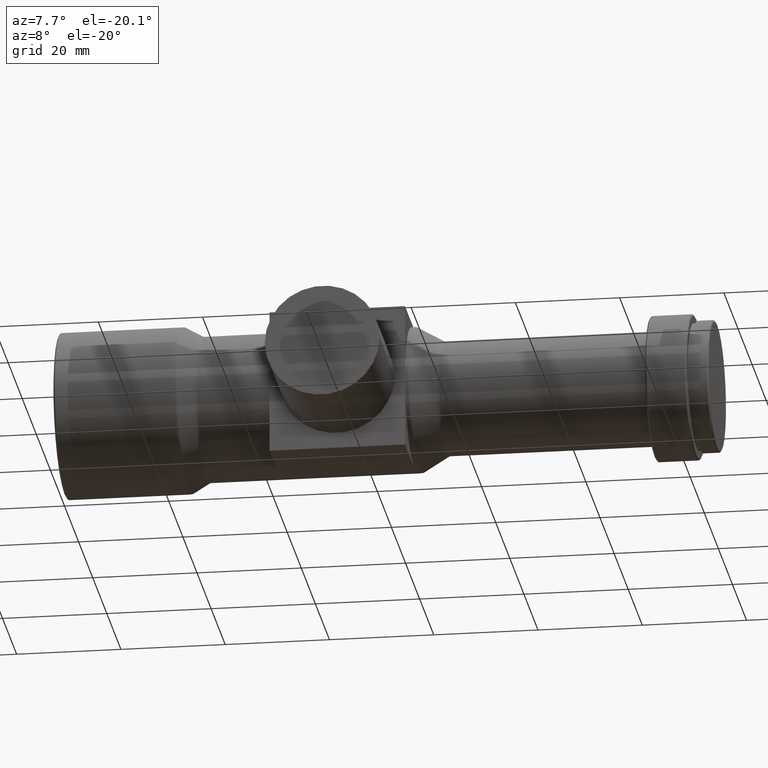
[diagram: clean part render]
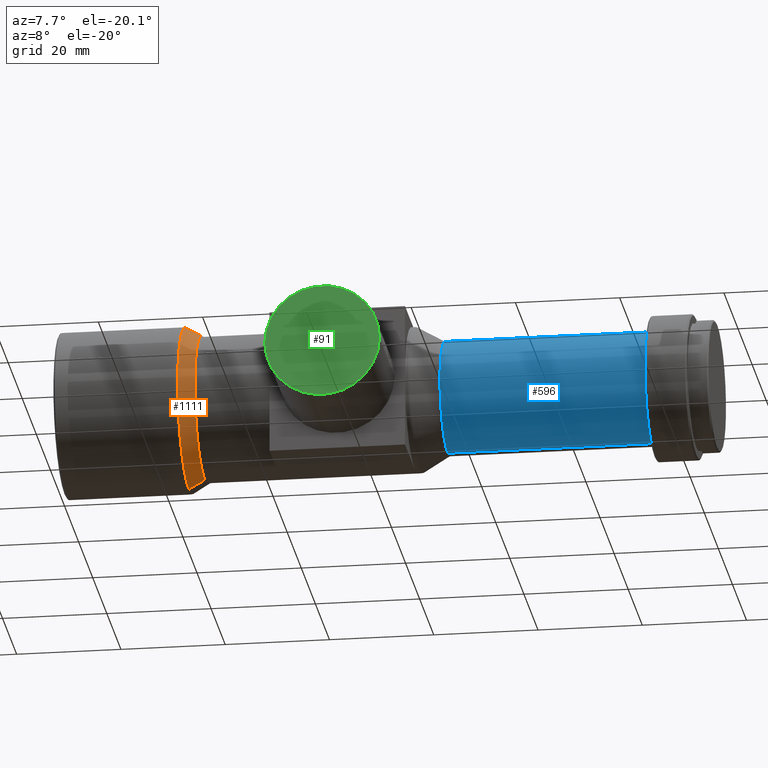
[diagram: same view with three faces highlighted in distinct colors, each labeled with its STEP entity id]
A machine part, auxiliary view with three faces highlighted in distinct colors.
Their STEP definitions:

[orange] entity #1111 — the highlighted conical surface has half-angle 29.648 deg.
#19 = EDGE_CURVE ( 'NONE', #992, #1063, #1254, .T. ) ;
#21 = VECTOR ( 'NONE', #29, 1000.000000000000000 ) ;
#29 = DIRECTION ( 'NONE',  ( -0.8690813454730785800, 0.0000000000000000000, 0.4946691974953599200 ) ) ;
#73 = CARTESIAN_POINT ( 'NONE',  ( 23.85156319832150700, 0.0000000000000000000, 15.86908134547308100 ) ) ;
#77 = CARTESIAN_POINT ( 'NONE',  ( 26.90533080250463600, 1.730538429927801500E-015, -14.13091865452691900 ) ) ;
#119 = DIRECTION ( 'NONE',  ( -1.000000000000000000, -0.0000000000000000000, -0.0000000000000000000 ) ) ;
#191 = EDGE_CURVE ( 'NONE', #992, #759, #477, .T. ) ;
#254 = DIRECTION ( 'NONE',  ( 0.0000000000000000000, 0.0000000000000000000, 1.000000000000000000 ) ) ;
#310 = ORIENTED_EDGE ( 'NONE', *, *, #799, .F. ) ;
#337 = DIRECTION ( 'NONE',  ( -1.000000000000000000, -0.0000000000000000000, -0.0000000000000000000 ) ) ;
#378 = LINE ( 'NONE', #632, #21 ) ;
#392 = AXIS2_PLACEMENT_3D ( 'NONE', #925, #337, #254 ) ;
#427 = CARTESIAN_POINT ( 'NONE',  ( 23.85156319832150700, 0.0000000000000000000, 0.0000000000000000000 ) ) ;
#445 = ORIENTED_EDGE ( 'NONE', *, *, #191, .F. ) ;
#474 = DIRECTION ( 'NONE',  ( -0.8690813454730785800, 6.057950493494824300E-017, -0.4946691974953599200 ) ) ;
#477 = LINE ( 'NONE', #77, #754 ) ;
#483 = VERTEX_POINT ( 'NONE', #73 ) ;
#507 = AXIS2_PLACEMENT_3D ( 'NONE', #427, #119, #508 ) ;
#508 = DIRECTION ( 'NONE',  ( 0.0000000000000000000, 0.0000000000000000000, 1.000000000000000000 ) ) ;
#523 = CARTESIAN_POINT ( 'NONE',  ( 26.90533080250463600, 0.0000000000000000000, 0.0000000000000000000 ) ) ;
#617 = CARTESIAN_POINT ( 'NONE',  ( 23.85156319832150700, 1.943401967514258300E-015, -15.86908134547308100 ) ) ;
#632 = CARTESIAN_POINT ( 'NONE',  ( 26.90533080250463600, 0.0000000000000000000, 14.13091865452691900 ) ) ;
#693 = CARTESIAN_POINT ( 'NONE',  ( 26.90533080250463600, 0.0000000000000000000, 14.13091865452691900 ) ) ;
#754 = VECTOR ( 'NONE', #474, 1000.000000000000000 ) ;
#759 = VERTEX_POINT ( 'NONE', #617 ) ;
#761 = ORIENTED_EDGE ( 'NONE', *, *, #19, .T. ) ;
#799 = EDGE_CURVE ( 'NONE', #759, #483, #1123, .T. ) ;
#844 = ORIENTED_EDGE ( 'NONE', *, *, #1238, .T. ) ;
#925 = CARTESIAN_POINT ( 'NONE',  ( 26.90533080250463600, 0.0000000000000000000, 0.0000000000000000000 ) ) ;
#992 = VERTEX_POINT ( 'NONE', #1209 ) ;
#1017 = DIRECTION ( 'NONE',  ( 0.0000000000000000000, 0.0000000000000000000, 1.000000000000000000 ) ) ;
#1063 = VERTEX_POINT ( 'NONE', #693 ) ;
#1111 = ADVANCED_FACE ( 'NONE', ( #1203 ), #1140, .T. ) ;
#1115 = DIRECTION ( 'NONE',  ( -1.000000000000000000, -0.0000000000000000000, -0.0000000000000000000 ) ) ;
#1123 = CIRCLE ( 'NONE', #507, 15.86908134547308100 ) ;
#1140 = CONICAL_SURFACE ( 'NONE', #1183, 14.13091865452691900, 0.5174541556960687800 ) ;
#1163 = EDGE_LOOP ( 'NONE', ( #445, #761, #844, #310 ) ) ;
#1183 = AXIS2_PLACEMENT_3D ( 'NONE', #523, #1115, #1017 ) ;
#1203 = FACE_OUTER_BOUND ( 'NONE', #1163, .T. ) ;
#1209 = CARTESIAN_POINT ( 'NONE',  ( 26.90533080250463600, 1.730538429927801300E-015, -14.13091865452691900 ) ) ;
#1238 = EDGE_CURVE ( 'NONE', #1063, #483, #378, .T. ) ;
#1254 = CIRCLE ( 'NONE', #392, 14.13091865452691900 ) ;

[blue] entity #596 — the highlighted cylindrical surface (partial cylindrical patch) has radius 11 mm, axis along (-1, -0, -0).
#15 = AXIS2_PLACEMENT_3D ( 'NONE', #683, #895, #93 ) ;
#28 = VERTEX_POINT ( 'NONE', #302 ) ;
#93 = DIRECTION ( 'NONE',  ( 0.0000000000000000000, 0.0000000000000000000, 1.000000000000000000 ) ) ;
#99 = CARTESIAN_POINT ( 'NONE',  ( 113.1999999999999900, 1.347111479062088600E-015, -11.00000000000000000 ) ) ;
#133 = ORIENTED_EDGE ( 'NONE', *, *, #1023, .F. ) ;
#136 = DIRECTION ( 'NONE',  ( -1.000000000000000000, -0.0000000000000000000, -0.0000000000000000000 ) ) ;
#163 = VERTEX_POINT ( 'NONE', #1070 ) ;
#195 = CYLINDRICAL_SURFACE ( 'NONE', #402, 11.00000000000000200 ) ;
#196 = CARTESIAN_POINT ( 'NONE',  ( 113.1999999999999900, 0.0000000000000000000, 0.0000000000000000000 ) ) ;
#302 = CARTESIAN_POINT ( 'NONE',  ( 73.50000000000000000, 1.347111479062089000E-015, -11.00000000000000400 ) ) ;
#307 = DIRECTION ( 'NONE',  ( 0.0000000000000000000, 0.0000000000000000000, 1.000000000000000000 ) ) ;
#352 = DIRECTION ( 'NONE',  ( -1.000000000000000000, -0.0000000000000000000, -0.0000000000000000000 ) ) ;
#364 = VECTOR ( 'NONE', #352, 1000.000000000000000 ) ;
#402 = AXIS2_PLACEMENT_3D ( 'NONE', #1084, #901, #307 ) ;
#457 = LINE ( 'NONE', #729, #1085 ) ;
#504 = ORIENTED_EDGE ( 'NONE', *, *, #1215, .T. ) ;
#547 = ORIENTED_EDGE ( 'NONE', *, *, #581, .T. ) ;
#581 = EDGE_CURVE ( 'NONE', #1075, #163, #1242, .T. ) ;
#596 = ADVANCED_FACE ( 'NONE', ( #710 ), #195, .T. ) ;
#628 = DIRECTION ( 'NONE',  ( -1.000000000000000000, -0.0000000000000000000, -0.0000000000000000000 ) ) ;
#681 = VERTEX_POINT ( 'NONE', #1182 ) ;
#683 = CARTESIAN_POINT ( 'NONE',  ( 73.50000000000000000, 0.0000000000000000000, 0.0000000000000000000 ) ) ;
#697 = AXIS2_PLACEMENT_3D ( 'NONE', #196, #628, #1009 ) ;
#701 = ORIENTED_EDGE ( 'NONE', *, *, #883, .F. ) ;
#710 = FACE_OUTER_BOUND ( 'NONE', #932, .T. ) ;
#729 = CARTESIAN_POINT ( 'NONE',  ( 0.0000000000000000000, 1.347111479062088600E-015, -11.00000000000000200 ) ) ;
#883 = EDGE_CURVE ( 'NONE', #1075, #28, #457, .T. ) ;
#895 = DIRECTION ( 'NONE',  ( -1.000000000000000000, -0.0000000000000000000, -0.0000000000000000000 ) ) ;
#901 = DIRECTION ( 'NONE',  ( -1.000000000000000000, -0.0000000000000000000, -0.0000000000000000000 ) ) ;
#932 = EDGE_LOOP ( 'NONE', ( #701, #547, #504, #133 ) ) ;
#1009 = DIRECTION ( 'NONE',  ( 0.0000000000000000000, 0.0000000000000000000, 1.000000000000000000 ) ) ;
#1023 = EDGE_CURVE ( 'NONE', #28, #681, #1047, .T. ) ;
#1047 = CIRCLE ( 'NONE', #15, 11.00000000000000400 ) ;
#1070 = CARTESIAN_POINT ( 'NONE',  ( 113.1999999999999900, 0.0000000000000000000, 11.00000000000000000 ) ) ;
#1075 = VERTEX_POINT ( 'NONE', #99 ) ;
#1084 = CARTESIAN_POINT ( 'NONE',  ( 0.0000000000000000000, 0.0000000000000000000, 0.0000000000000000000 ) ) ;
#1085 = VECTOR ( 'NONE', #136, 1000.000000000000000 ) ;
#1089 = LINE ( 'NONE', #1241, #364 ) ;
#1182 = CARTESIAN_POINT ( 'NONE',  ( 73.50000000000000000, 0.0000000000000000000, 11.00000000000000400 ) ) ;
#1215 = EDGE_CURVE ( 'NONE', #163, #681, #1089, .T. ) ;
#1241 = CARTESIAN_POINT ( 'NONE',  ( 0.0000000000000000000, 0.0000000000000000000, 11.00000000000000200 ) ) ;
#1242 = CIRCLE ( 'NONE', #697, 11.00000000000000000 ) ;

[green] entity #91 — the highlighted planar face has unit normal (-0, -1, 0).
#1 = DIRECTION ( 'NONE',  ( -1.000000000000000000, 0.0000000000000000000, 0.0000000000000000000 ) ) ;
#88 = CIRCLE ( 'NONE', #1112, 10.99999999999998900 ) ;
#91 = ADVANCED_FACE ( 'NONE', ( #743 ), #785, .T. ) ;
#259 = CARTESIAN_POINT ( 'NONE',  ( 65.19999999999998900, -35.39999999999999900, 1.347111479062088000E-015 ) ) ;
#418 = CARTESIAN_POINT ( 'NONE',  ( 54.20000000000000300, -35.39999999999999900, 0.0000000000000000000 ) ) ;
#525 = DIRECTION ( 'NONE',  ( -1.000000000000000000, 0.0000000000000000000, 0.0000000000000000000 ) ) ;
#615 = CIRCLE ( 'NONE', #650, 10.99999999999998900 ) ;
#633 = EDGE_LOOP ( 'NONE', ( #893, #648 ) ) ;
#648 = ORIENTED_EDGE ( 'NONE', *, *, #740, .F. ) ;
#650 = AXIS2_PLACEMENT_3D ( 'NONE', #418, #1105, #525 ) ;
#673 = AXIS2_PLACEMENT_3D ( 'NONE', #1198, #1305, #690 ) ;
#686 = EDGE_CURVE ( 'NONE', #1138, #1212, #615, .T. ) ;
#690 = DIRECTION ( 'NONE',  ( 1.000000000000000000, -1.507592081300703600E-016, 0.0000000000000000000 ) ) ;
#740 = EDGE_CURVE ( 'NONE', #1212, #1138, #88, .T. ) ;
#743 = FACE_OUTER_BOUND ( 'NONE', #633, .T. ) ;
#785 = PLANE ( 'NONE',  #673 ) ;
#800 = DIRECTION ( 'NONE',  ( 1.507592081300703600E-016, 1.000000000000000000, -0.0000000000000000000 ) ) ;
#893 = ORIENTED_EDGE ( 'NONE', *, *, #686, .F. ) ;
#1028 = CARTESIAN_POINT ( 'NONE',  ( 54.20000000000000300, -35.39999999999999900, 0.0000000000000000000 ) ) ;
#1105 = DIRECTION ( 'NONE',  ( 1.507592081300703600E-016, 1.000000000000000000, -0.0000000000000000000 ) ) ;
#1112 = AXIS2_PLACEMENT_3D ( 'NONE', #1028, #800, #1 ) ;
#1138 = VERTEX_POINT ( 'NONE', #1213 ) ;
#1198 = CARTESIAN_POINT ( 'NONE',  ( 43.20000000000001700, -35.39999999999999900, 0.0000000000000000000 ) ) ;
#1212 = VERTEX_POINT ( 'NONE', #259 ) ;
#1213 = CARTESIAN_POINT ( 'NONE',  ( 43.20000000000001700, -35.39999999999999900, 0.0000000000000000000 ) ) ;
#1305 = DIRECTION ( 'NONE',  ( -1.507592081300703600E-016, -1.000000000000000000, 0.0000000000000000000 ) ) ;